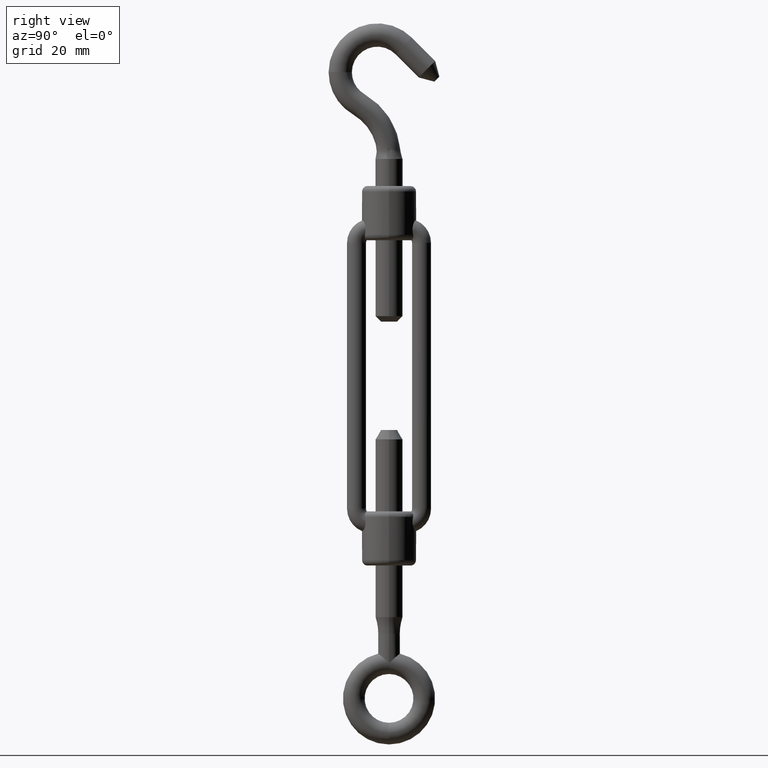
[diagram: clean part render]
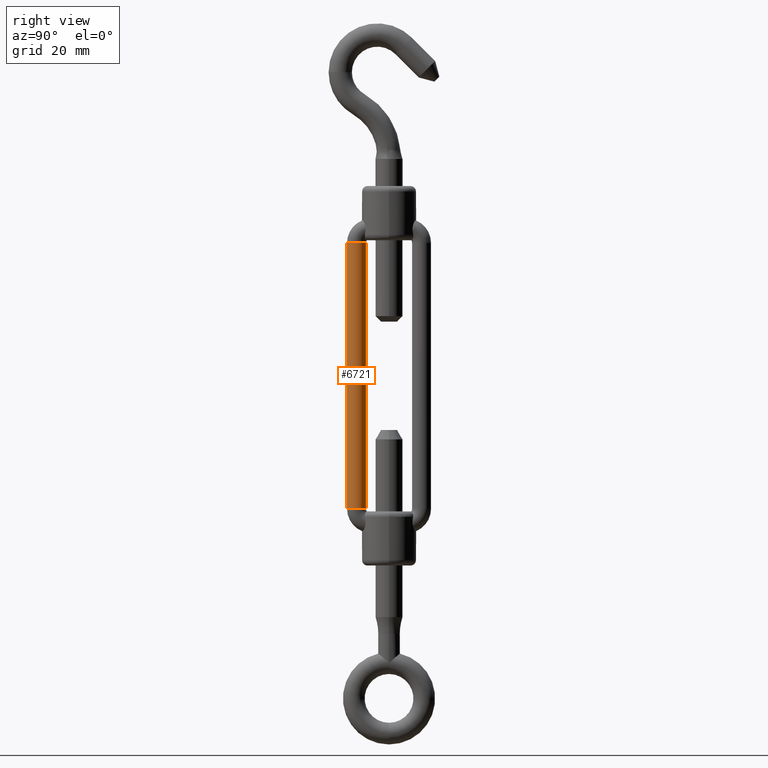
[diagram: same view with one face highlighted and labeled with its STEP entity id]
A machine part, right view. The second image highlights one B-rep face of the part: STEP entity #6721.
In plain terms, the highlighted cylindrical surface (edge-blend (fillet) strip) has radius 1.75 mm, axis along (0, 0, -1).
Its self-contained STEP definition (entity closure, byte-faithful):
#680 = AXIS2_PLACEMENT_3D ( 'NONE', #6346, #11024, #13852 ) ;
#3782 = ORIENTED_EDGE ( 'NONE', *, *, #18851, .F. ) ;
#4283 = CARTESIAN_POINT ( 'NONE',  ( 0.7499999999999984500, -4.250000000000010700, 24.50000000000000000 ) ) ;
#4771 = EDGE_CURVE ( 'NONE', #11844, #13814, #12894, .T. ) ;
#5340 = EDGE_CURVE ( 'NONE', #13814, #15602, #6080, .T. ) ;
#5593 = CYLINDRICAL_SURFACE ( 'NONE', #680, 1.749999999999994700 ) ;
#6070 = ORIENTED_EDGE ( 'NONE', *, *, #5340, .T. ) ;
#6080 = CIRCLE ( 'NONE', #6837, 1.749999999999994700 ) ;
#6346 = CARTESIAN_POINT ( 'NONE',  ( 0.7499999999999984500, -6.000000000000005300, 24.50000000000000400 ) ) ;
#6631 = DIRECTION ( 'NONE',  ( 0.0000000000000000000, 3.540251991789402200E-017, -1.000000000000000000 ) ) ;
#6721 = ADVANCED_FACE ( 'NONE', ( #7471 ), #5593, .T. ) ;
#6837 = AXIS2_PLACEMENT_3D ( 'NONE', #17807, #10513, #8922 ) ;
#7471 = FACE_OUTER_BOUND ( 'NONE', #12316, .T. ) ;
#7522 = CARTESIAN_POINT ( 'NONE',  ( 0.7499999999999984500, -7.750000000000000000, 24.50000000000001100 ) ) ;
#7642 = CARTESIAN_POINT ( 'NONE',  ( 0.7499999999999984500, -4.250000000000008900, -24.50000000000000000 ) ) ;
#7906 = DIRECTION ( 'NONE',  ( -0.0000000000000000000, 3.391901413832837200E-015, 1.000000000000000000 ) ) ;
#8922 = DIRECTION ( 'NONE',  ( 0.0000000000000000000, -1.000000000000000000, 3.965082230804142400E-015 ) ) ;
#9170 = CIRCLE ( 'NONE', #15726, 1.749999999999994700 ) ;
#9750 = DIRECTION ( 'NONE',  ( 0.0000000000000000000, -1.000000000000000000, 3.965082230804142400E-015 ) ) ;
#9854 = LINE ( 'NONE', #12814, #12660 ) ;
#10049 = VERTEX_POINT ( 'NONE', #4283 ) ;
#10513 = DIRECTION ( 'NONE',  ( -0.0000000000000000000, 3.391901413832837200E-015, 1.000000000000000000 ) ) ;
#11024 = DIRECTION ( 'NONE',  ( 0.0000000000000000000, 3.540251991789402200E-017, -1.000000000000000000 ) ) ;
#11455 = CARTESIAN_POINT ( 'NONE',  ( 0.7499999999999984500, -7.750000000000000000, 24.50000000000001100 ) ) ;
#11844 = VERTEX_POINT ( 'NONE', #11455 ) ;
#12035 = ORIENTED_EDGE ( 'NONE', *, *, #17425, .F. ) ;
#12141 = CARTESIAN_POINT ( 'NONE',  ( 0.7499999999999984500, -7.749999999999998200, -24.49999999999998900 ) ) ;
#12316 = EDGE_LOOP ( 'NONE', ( #12035, #18663, #6070, #3782 ) ) ;
#12660 = VECTOR ( 'NONE', #6631, 1000.000000000000000 ) ;
#12814 = CARTESIAN_POINT ( 'NONE',  ( 0.7499999999999984500, -4.250000000000010700, 24.50000000000000000 ) ) ;
#12894 = LINE ( 'NONE', #7522, #14325 ) ;
#13814 = VERTEX_POINT ( 'NONE', #12141 ) ;
#13852 = DIRECTION ( 'NONE',  ( 0.0000000000000000000, 1.000000000000000000, 0.0000000000000000000 ) ) ;
#14325 = VECTOR ( 'NONE', #16333, 1000.000000000000000 ) ;
#15602 = VERTEX_POINT ( 'NONE', #7642 ) ;
#15726 = AXIS2_PLACEMENT_3D ( 'NONE', #17455, #7906, #9750 ) ;
#16333 = DIRECTION ( 'NONE',  ( 0.0000000000000000000, 3.540251991789402200E-017, -1.000000000000000000 ) ) ;
#17425 = EDGE_CURVE ( 'NONE', #11844, #10049, #9170, .T. ) ;
#17455 = CARTESIAN_POINT ( 'NONE',  ( 0.7499999999999984500, -6.000000000000005300, 24.50000000000000400 ) ) ;
#17807 = CARTESIAN_POINT ( 'NONE',  ( 0.7499999999999984500, -6.000000000000003600, -24.49999999999999600 ) ) ;
#18663 = ORIENTED_EDGE ( 'NONE', *, *, #4771, .T. ) ;
#18851 = EDGE_CURVE ( 'NONE', #10049, #15602, #9854, .T. ) ;